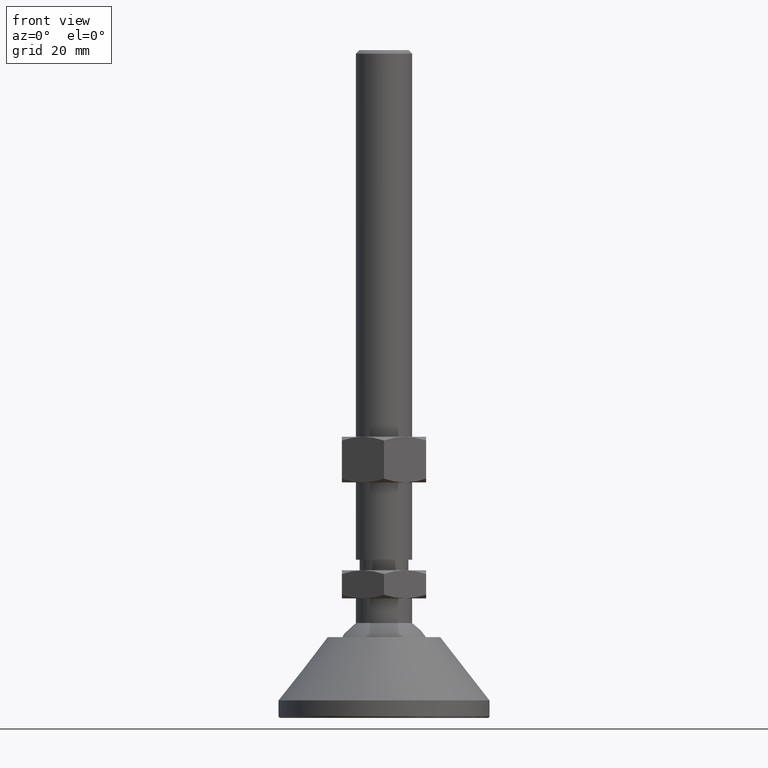
[diagram: clean part render]
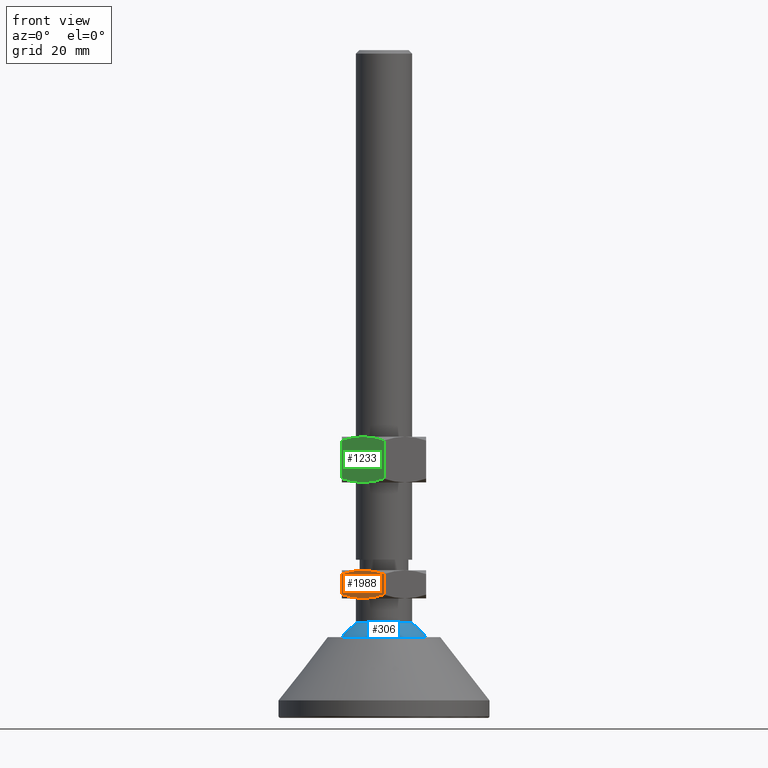
[diagram: same view with three faces highlighted in distinct colors, each labeled with its STEP entity id]
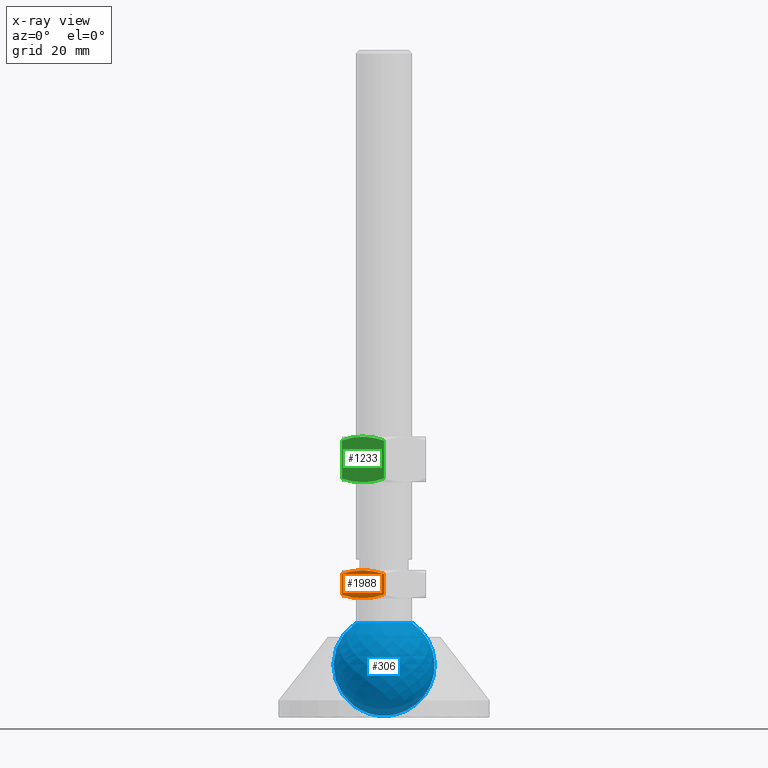
[diagram: x-ray of the same camera — body ghosted, the three highlighted faces saturated]
A machine part, front view with three faces highlighted in distinct colors.
The next image is the same camera in x-ray (body ghosted, the three faces saturated) — at least one of them is partly hidden behind the body in this view.
Their STEP definitions:

[orange] entity #1988 — the highlighted planar face has unit normal (-0.5, -0.866, 0).
#1294=CARTESIAN_POINT('',(-5.999999999999886,-10.392304845413253,34.000000333786488));
#1295=VERTEX_POINT('',#1294);
#1404=CARTESIAN_POINT('',(-11.999999999996817,-6.928203230273760,35.071797119795178));
#1405=VERTEX_POINT('',#1404);
#1406=CARTESIAN_POINT('',(-5.999999999999886,-10.392304845413260,34.000000333786488));
#1407=CARTESIAN_POINT('',(-6.489001402938811,-10.109979753792349,34.000000333786488));
#1408=CARTESIAN_POINT('',(-7.541559054026948,-9.502285310599042,34.049872985224056));
#1409=CARTESIAN_POINT('',(-9.557843425403917,-8.338182986021609,34.344528375512709));
#1410=CARTESIAN_POINT('',(-11.060624110095887,-7.470552153180095,34.758671818402945));
#1411=CARTESIAN_POINT('',(-11.999999999998408,-6.928203230274628,35.071797119795178));
#1412=B_SPLINE_CURVE_WITH_KNOTS('',3,(#1406,#1407,#1408,#1409,#1410,#1411),.UNSPECIFIED.,.F.,.U.,(4,1,1,4),(0.0,1.694404685384265,3.645477384992637,7.034329381845756),.UNSPECIFIED.);
#1413=EDGE_CURVE('',#1295,#1405,#1412,.T.);
#1556=CARTESIAN_POINT('',(0.0,-13.856406460490801,35.071797119762437));
#1557=VERTEX_POINT('',#1556);
#1567=CARTESIAN_POINT('',(0.0,-13.856406460520914,35.071797119762437));
#1568=CARTESIAN_POINT('',(-1.043096927404122,-13.254174168693295,34.724098138677732));
#1569=CARTESIAN_POINT('',(-2.581852301284926,-12.365773338978984,34.309900270755975));
#1570=CARTESIAN_POINT('',(-4.600541660894351,-11.200282494283636,34.041620584479460));
#1571=CARTESIAN_POINT('',(-5.544858025293820,-10.655081187029301,34.000000333786488));
#1572=CARTESIAN_POINT('',(-5.999999999999886,-10.392304845413260,34.000000333786488));
#1573=B_SPLINE_CURVE_WITH_KNOTS('',3,(#1567,#1568,#1569,#1570,#1571,#1572),.UNSPECIFIED.,.F.,.U.,(4,1,1,4),(0.0,3.763629233010876,5.457301525378333,7.034327279450173),.UNSPECIFIED.);
#1574=EDGE_CURVE('',#1557,#1295,#1573,.T.);
#1595=CARTESIAN_POINT('',(-11.999999999999886,-6.928203230275500,40.928203500565019));
#1596=VERTEX_POINT('',#1595);
#1606=CARTESIAN_POINT('',(-5.999999999999886,-10.392304845413253,42.000000333786488));
#1607=VERTEX_POINT('',#1606);
#1608=CARTESIAN_POINT('',(-11.999999999999886,-6.928203230275497,40.928203500565019));
#1609=CARTESIAN_POINT('',(-10.956903073764579,-7.530435521428347,41.275902496575668));
#1610=CARTESIAN_POINT('',(-9.418147700132522,-8.418836350188256,41.690100382906053));
#1611=CARTESIAN_POINT('',(-7.399458339334615,-9.584327196547738,41.958380081244513));
#1612=CARTESIAN_POINT('',(-6.455141974718458,-10.129528503790020,42.000000333786488));
#1613=CARTESIAN_POINT('',(-5.999999999999886,-10.392304845413257,42.000000333786488));
#1614=B_SPLINE_CURVE_WITH_KNOTS('',3,(#1608,#1609,#1610,#1611,#1612,#1613),.UNSPECIFIED.,.F.,.U.,(4,1,1,4),(0.0,3.763629241763667,5.457301534559152,7.034327288706447),.UNSPECIFIED.);
#1615=EDGE_CURVE('',#1596,#1607,#1614,.T.);
#1825=CARTESIAN_POINT('',(1.136868E-013,-13.856406460551055,40.928203500564905));
#1826=VERTEX_POINT('',#1825);
#1827=CARTESIAN_POINT('',(-5.999999999999886,-10.392304845413257,42.000000333786488));
#1828=CARTESIAN_POINT('',(-5.510998597079379,-10.674629937023484,42.000000333786488));
#1829=CARTESIAN_POINT('',(-4.458440945897110,-11.282324380271195,41.950127680139758));
#1830=CARTESIAN_POINT('',(-2.442156573127932,-12.446426705651659,41.655472276647060));
#1831=CARTESIAN_POINT('',(-0.939375889162648,-13.314057538072689,41.241328815503152));
#1832=CARTESIAN_POINT('',(1.136868E-013,-13.856406460551041,40.928203500564905));
#1833=B_SPLINE_CURVE_WITH_KNOTS('',3,(#1827,#1828,#1829,#1830,#1831,#1832),.UNSPECIFIED.,.F.,.U.,(4,1,1,4),(0.0,1.694404685359915,3.645477385261614,7.034329391079479),.UNSPECIFIED.);
#1834=EDGE_CURVE('',#1607,#1826,#1833,.T.);
#1957=CARTESIAN_POINT('',(-11.999999999999886,-6.928203230275496,35.071797119795221));
#1958=DIRECTION('',(0.0,0.0,1.0));
#1959=VECTOR('',#1958,5.856406380769769);
#1960=LINE('',#1957,#1959);
#1961=EDGE_CURVE('',#1405,#1596,#1960,.T.);
#1970=CARTESIAN_POINT('',(-11.999999999999886,-6.928203230275496,34.000000333786488));
#1971=DIRECTION('',(-0.500000000000001,-0.866025403784438,5.302876E-017));
#1972=DIRECTION('',(0.866025403784438,-0.500000000000001,3.061617E-017));
#1973=AXIS2_PLACEMENT_3D('',#1970,#1971,#1972);
#1974=PLANE('',#1973);
#1975=ORIENTED_EDGE('',*,*,#1574,.F.);
#1976=CARTESIAN_POINT('',(1.136868E-013,-13.856406460551026,35.071797119762408));
#1977=DIRECTION('',(0.0,0.0,1.0));
#1978=VECTOR('',#1977,5.856406380802525);
#1979=LINE('',#1976,#1978);
#1980=EDGE_CURVE('',#1557,#1826,#1979,.T.);
#1981=ORIENTED_EDGE('',*,*,#1980,.T.);
#1982=ORIENTED_EDGE('',*,*,#1834,.F.);
#1983=ORIENTED_EDGE('',*,*,#1615,.F.);
#1984=ORIENTED_EDGE('',*,*,#1961,.F.);
#1985=ORIENTED_EDGE('',*,*,#1413,.F.);
#1986=EDGE_LOOP('',(#1975,#1981,#1982,#1983,#1984,#1985));
#1987=FACE_OUTER_BOUND('',#1986,.T.);
#1988=ADVANCED_FACE('',(#1987),#1974,.T.);

[blue] entity #306 — the highlighted face is a freeform B-spline surface patch.
#223=CARTESIAN_POINT('',(1.136868E-013,3.537973E-017,0.577794898114036));
#224=CARTESIAN_POINT('',(1.136868E-013,3.537973E-017,0.577794898114036));
#225=CARTESIAN_POINT('',(1.136868E-013,3.537973E-017,0.577794898114036));
#226=CARTESIAN_POINT('',(1.136868E-013,3.537973E-017,0.577794898114036));
#227=CARTESIAN_POINT('',(1.136868E-013,3.537973E-017,0.577794898114036));
#228=CARTESIAN_POINT('',(1.136868E-013,3.537973E-017,0.577794898114036));
#229=CARTESIAN_POINT('',(1.136868E-013,3.537973E-017,0.577794898114036));
#230=CARTESIAN_POINT('',(1.136868E-013,3.537973E-017,0.577794898114036));
#231=CARTESIAN_POINT('',(1.136868E-013,3.537973E-017,0.577794898114036));
#232=CARTESIAN_POINT('',(10.702083384599058,3.537973E-017,0.577794898114036));
#233=CARTESIAN_POINT('',(10.702083384599058,10.702083384598945,0.577794898114035));
#234=CARTESIAN_POINT('',(1.136868E-013,10.702083384598945,0.577794898114035));
#235=CARTESIAN_POINT('',(-10.702083384598831,10.702083384598945,0.577794898114035));
#236=CARTESIAN_POINT('',(-10.702083384598831,3.537973E-017,0.577794898114036));
#237=CARTESIAN_POINT('',(-10.702083384598831,-10.702083384598945,0.577794898114036));
#238=CARTESIAN_POINT('',(1.136868E-013,-10.702083384598945,0.577794898114036));
#239=CARTESIAN_POINT('',(10.702083384599058,-10.702083384598945,0.577794898114036));
#240=CARTESIAN_POINT('',(10.702083384599058,3.537973E-017,0.577794898114036));
#241=CARTESIAN_POINT('',(13.803377507390985,6.625752E-016,10.820673572336682));
#242=CARTESIAN_POINT('',(13.803377507390984,13.803377507390872,10.820673572336682));
#243=CARTESIAN_POINT('',(1.136868E-013,13.803377507390872,10.820673572336682));
#244=CARTESIAN_POINT('',(-13.803377507390758,13.803377507390872,10.820673572336682));
#245=CARTESIAN_POINT('',(-13.803377507390758,6.625752E-016,10.820673572336682));
#246=CARTESIAN_POINT('',(-13.803377507390758,-13.803377507390872,10.820673572336682));
#247=CARTESIAN_POINT('',(1.136868E-013,-13.803377507390872,10.820673572336682));
#248=CARTESIAN_POINT('',(13.803377507390984,-13.803377507390872,10.820673572336682));
#249=CARTESIAN_POINT('',(13.803377507390985,6.625752E-016,10.820673572336682));
#250=CARTESIAN_POINT('',(16.904671630182911,1.289771E-015,21.063552246559329));
#251=CARTESIAN_POINT('',(16.904671630182911,16.904671630182797,21.063552246559329));
#252=CARTESIAN_POINT('',(1.136868E-013,16.904671630182797,21.063552246559329));
#253=CARTESIAN_POINT('',(-16.904671630182683,16.904671630182797,21.063552246559329));
#254=CARTESIAN_POINT('',(-16.904671630182683,1.289771E-015,21.063552246559329));
#255=CARTESIAN_POINT('',(-16.904671630182683,-16.904671630182797,21.063552246559329));
#256=CARTESIAN_POINT('',(1.136868E-013,-16.904671630182797,21.063552246559329));
#257=CARTESIAN_POINT('',(16.904671630182911,-16.904671630182797,21.063552246559329));
#258=CARTESIAN_POINT('',(16.904671630182911,1.289771E-015,21.063552246559329));
#259=CARTESIAN_POINT('',(7.999999999991475,1.653273E-015,27.000000000003524));
#260=CARTESIAN_POINT('',(7.999999999991475,7.999999999991363,27.000000000003521));
#261=CARTESIAN_POINT('',(1.136868E-013,7.999999999991363,27.000000000003524));
#262=CARTESIAN_POINT('',(-7.999999999991248,7.999999999991363,27.000000000003521));
#263=CARTESIAN_POINT('',(-7.999999999991248,1.653273E-015,27.000000000003524));
#264=CARTESIAN_POINT('',(-7.999999999991248,-7.999999999991360,27.000000000003521));
#265=CARTESIAN_POINT('',(1.136868E-013,-7.999999999991360,27.000000000003524));
#266=CARTESIAN_POINT('',(7.999999999991475,-7.999999999991360,27.000000000003521));
#267=CARTESIAN_POINT('',(7.999999999991475,1.653273E-015,27.000000000003524));
#275=(BOUNDED_SURFACE()B_SPLINE_SURFACE(2,2,((#223,#232,#241,#250,#259),(#224,#233,#242,#251,#260),(#225,#234,#243,#252,#261),(#226,#235,#244,#253,#262),(#227,#236,#245,#254,#263),(#228,#237,#246,#255,#264),(#229,#238,#247,#256,#265),(#230,#239,#248,#257,#266),(#231,#240,#249,#258,#267)),.UNSPECIFIED.,.T.,.F.,.U.)B_SPLINE_SURFACE_WITH_KNOTS((3,2,2,2,3),(3,2,3),(0.0,0.250000000000000,0.500000000000000,0.750000000000000,1.0),(0.0,0.500000000000000,1.0),.UNSPECIFIED.)GEOMETRIC_REPRESENTATION_ITEM()RATIONAL_B_SPLINE_SURFACE(((1.0,0.803051725820886,1.0,0.803051725820886,1.0),(0.707106781186548,0.567843320971509,0.707106781186548,0.567843320971509,0.707106781186548),(1.0,0.803051725820886,1.0,0.803051725820886,1.0),(0.707106781186548,0.567843320971509,0.707106781186548,0.567843320971509,0.707106781186548),(1.0,0.803051725820886,1.0,0.803051725820886,1.0),(0.707106781186548,0.567843320971509,0.707106781186548,0.567843320971509,0.707106781186548),(1.0,0.803051725820886,1.0,0.803051725820886,1.0),(0.707106781186548,0.567843320971509,0.707106781186548,0.567843320971509,0.707106781186548),(1.0,0.803051725820886,1.0,0.803051725820886,1.0)))REPRESENTATION_ITEM('')SURFACE());
#276=CARTESIAN_POINT('',(1.136868E-013,3.537973E-017,0.577794898114007));
#277=VERTEX_POINT('',#276);
#278=CARTESIAN_POINT('',(7.999999999987722,1.653273E-015,27.000000000006025));
#279=VERTEX_POINT('',#278);
#280=CARTESIAN_POINT('',(1.136868E-013,9.184851E-016,14.999999999982606));
#281=DIRECTION('',(0.0,-1.0,6.123234E-017));
#282=DIRECTION('',(0.0,-6.123234E-017,-1.0));
#283=AXIS2_PLACEMENT_3D('',#280,#281,#282);
#284=CIRCLE('',#283,14.422205101868570);
#285=EDGE_CURVE('',#277,#279,#284,.T.);
#286=ORIENTED_EDGE('',*,*,#285,.T.);
#287=CARTESIAN_POINT('',(-7.999999999987494,1.653273E-015,27.000000000006025));
#288=VERTEX_POINT('',#287);
#289=CARTESIAN_POINT('',(1.136868E-013,1.653273E-015,27.000000000006025));
#290=DIRECTION('',(0.0,6.123234E-017,1.0));
#291=DIRECTION('',(1.0,0.0,0.0));
#292=AXIS2_PLACEMENT_3D('',#289,#290,#291);
#293=CIRCLE('',#292,7.999999999987608);
#294=EDGE_CURVE('',#288,#279,#293,.T.);
#295=ORIENTED_EDGE('',*,*,#294,.F.);
#296=CARTESIAN_POINT('',(1.136868E-013,1.653273E-015,27.000000000006025));
#297=DIRECTION('',(0.0,6.123234E-017,1.0));
#298=DIRECTION('',(1.0,0.0,0.0));
#299=AXIS2_PLACEMENT_3D('',#296,#297,#298);
#300=CIRCLE('',#299,7.999999999987608);
#301=EDGE_CURVE('',#279,#288,#300,.T.);
#302=ORIENTED_EDGE('',*,*,#301,.F.);
#303=ORIENTED_EDGE('',*,*,#285,.F.);
#304=EDGE_LOOP('',(#286,#295,#302,#303));
#305=FACE_OUTER_BOUND('',#304,.T.);
#306=ADVANCED_FACE('',(#305),#275,.T.);

[green] entity #1233 — the highlighted planar face has unit normal (-0.5, -0.866, 0).
#539=CARTESIAN_POINT('',(-5.999999999999886,-10.392304845413252,67.000000333786488));
#540=VERTEX_POINT('',#539);
#649=CARTESIAN_POINT('',(-11.999999999999886,-6.928203230275497,68.071797119797111));
#650=VERTEX_POINT('',#649);
#651=CARTESIAN_POINT('',(-11.999999999999886,-6.928203230275496,68.071797119797111));
#652=CARTESIAN_POINT('',(-10.893655833044363,-7.566951332883623,67.703015725208274));
#653=CARTESIAN_POINT('',(-9.300859467335840,-8.486552743383506,67.280503460184946));
#654=CARTESIAN_POINT('',(-7.280078632854384,-9.653251102151732,67.034121514372941));
#655=CARTESIAN_POINT('',(-6.401805603653543,-10.160322271981892,67.000000333786488));
#656=CARTESIAN_POINT('',(-5.999999999999886,-10.392304845413253,67.000000333786488));
#657=B_SPLINE_CURVE_WITH_KNOTS('',3,(#651,#652,#653,#654,#655,#656),.UNSPECIFIED.,.F.,.U.,(4,1,1,4),(0.0,3.992271418963571,5.642176844354091,7.034326547378428),.UNSPECIFIED.);
#658=EDGE_CURVE('',#650,#540,#657,.T.);
#801=CARTESIAN_POINT('',(1.136868E-013,-13.856406460548998,68.071797119795974));
#802=VERTEX_POINT('',#801);
#812=CARTESIAN_POINT('',(-5.999999999999886,-10.392304845413253,67.000000333786488));
#813=CARTESIAN_POINT('',(-5.533034849364185,-10.661907300834939,67.000000333786488));
#814=CARTESIAN_POINT('',(-4.568672258510674,-11.218682302260619,67.043622398928619));
#815=CARTESIAN_POINT('',(-2.550545216096793,-12.383848493457394,67.317748838535977));
#816=CARTESIAN_POINT('',(-1.023893774242310,-13.265261114369563,67.730499189862371));
#817=CARTESIAN_POINT('',(1.136868E-013,-13.856406460550012,68.071797119795974));
#818=B_SPLINE_CURVE_WITH_KNOTS('',3,(#812,#813,#814,#815,#816,#817),.UNSPECIFIED.,.F.,.U.,(4,1,1,4),(0.0,1.618012492887258,3.340103741279375,7.034330249539898),.UNSPECIFIED.);
#819=EDGE_CURVE('',#540,#802,#818,.T.);
#840=CARTESIAN_POINT('',(-11.999999999999886,-6.928203230275497,78.928203500565019));
#841=VERTEX_POINT('',#840);
#851=CARTESIAN_POINT('',(-5.999999999999886,-10.392304845413250,80.000000333786488));
#852=VERTEX_POINT('',#851);
#853=CARTESIAN_POINT('',(-5.999999999999886,-10.392304845413252,80.000000333786488));
#854=CARTESIAN_POINT('',(-6.466965135290934,-10.122702398850821,80.000000333786488));
#855=CARTESIAN_POINT('',(-7.431327710798314,-9.565927406285214,79.956378268865365));
#856=CARTESIAN_POINT('',(-9.449454755352122,-8.400761213853230,79.682251822505009));
#857=CARTESIAN_POINT('',(-10.976106212012610,-7.519348584391564,79.269501450113808));
#858=CARTESIAN_POINT('',(-11.999999999999886,-6.928203230275496,78.928203500565019));
#859=B_SPLINE_CURVE_WITH_KNOTS('',3,(#853,#854,#855,#856,#857,#858),.UNSPECIFIED.,.F.,.U.,(4,1,1,4),(0.0,1.618012439727986,3.340103688112820,7.034330258773011),.UNSPECIFIED.);
#860=EDGE_CURVE('',#852,#841,#859,.T.);
#1070=CARTESIAN_POINT('',(1.136868E-013,-13.856406460551023,78.928203500564905));
#1071=VERTEX_POINT('',#1070);
#1072=CARTESIAN_POINT('',(1.136868E-013,-13.856406460551023,78.928203500564905));
#1073=CARTESIAN_POINT('',(-1.106344155065926,-13.217658364807248,79.296984907434876));
#1074=CARTESIAN_POINT('',(-2.699140505485275,-12.298056963122194,79.719497188388459));
#1075=CARTESIAN_POINT('',(-4.719921341296413,-11.131358603600509,79.965879149994294));
#1076=CARTESIAN_POINT('',(-5.598194381604685,-10.624287427355650,80.000000333786488));
#1077=CARTESIAN_POINT('',(-5.999999999999886,-10.392304845413252,80.000000333786488));
#1078=B_SPLINE_CURVE_WITH_KNOTS('',3,(#1072,#1073,#1074,#1075,#1076,#1077),.UNSPECIFIED.,.F.,.U.,(4,1,1,4),(0.0,3.992271389775870,5.642176802470213,7.034326556610856),.UNSPECIFIED.);
#1079=EDGE_CURVE('',#1071,#852,#1078,.T.);
#1202=CARTESIAN_POINT('',(-11.999999999999886,-6.928203230275494,68.071797119797154));
#1203=DIRECTION('',(0.0,0.0,1.0));
#1204=VECTOR('',#1203,10.856406380767808);
#1205=LINE('',#1202,#1204);
#1206=EDGE_CURVE('',#650,#841,#1205,.T.);
#1215=CARTESIAN_POINT('',(-11.999999999999886,-6.928203230275494,67.000000333786488));
#1216=DIRECTION('',(-0.500000000000001,-0.866025403784438,5.302876E-017));
#1217=DIRECTION('',(0.866025403784438,-0.500000000000001,3.061617E-017));
#1218=AXIS2_PLACEMENT_3D('',#1215,#1216,#1217);
#1219=PLANE('',#1218);
#1220=ORIENTED_EDGE('',*,*,#819,.T.);
#1221=CARTESIAN_POINT('',(1.136868E-013,-13.856406460551025,68.071797119795988));
#1222=DIRECTION('',(0.0,0.0,1.0));
#1223=VECTOR('',#1222,10.856406380768959);
#1224=LINE('',#1221,#1223);
#1225=EDGE_CURVE('',#802,#1071,#1224,.T.);
#1226=ORIENTED_EDGE('',*,*,#1225,.T.);
#1227=ORIENTED_EDGE('',*,*,#1079,.T.);
#1228=ORIENTED_EDGE('',*,*,#860,.T.);
#1229=ORIENTED_EDGE('',*,*,#1206,.F.);
#1230=ORIENTED_EDGE('',*,*,#658,.T.);
#1231=EDGE_LOOP('',(#1220,#1226,#1227,#1228,#1229,#1230));
#1232=FACE_OUTER_BOUND('',#1231,.T.);
#1233=ADVANCED_FACE('',(#1232),#1219,.T.);